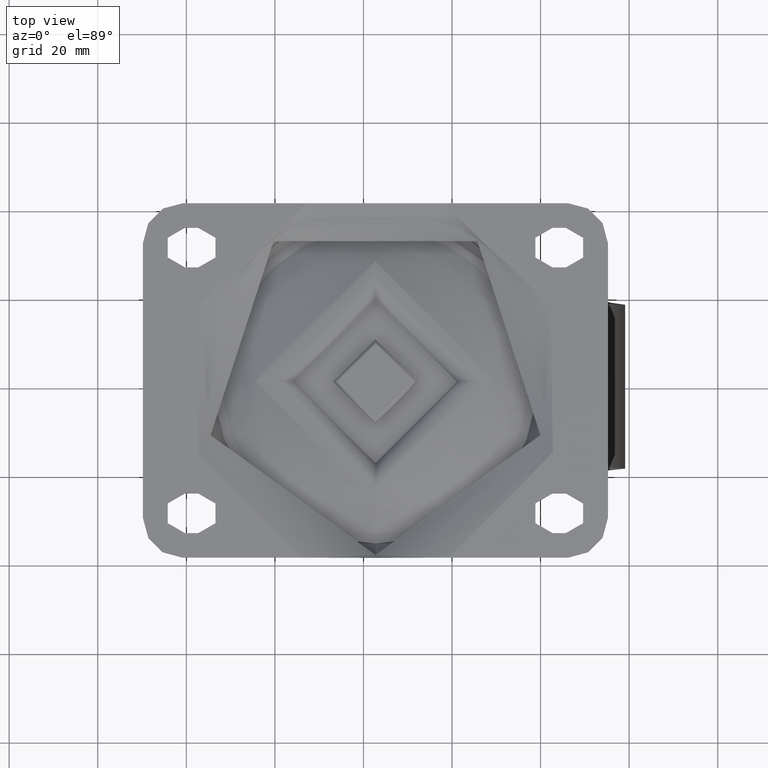
[diagram: clean part render]
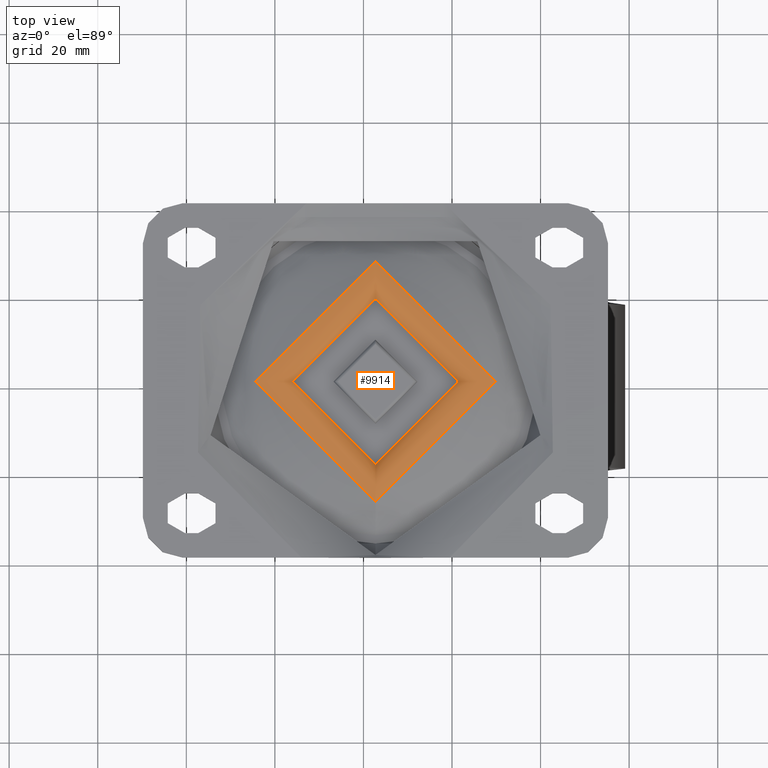
[diagram: same view with one face highlighted and labeled with its STEP entity id]
A machine part, top view. The second image highlights one B-rep face of the part: STEP entity #9914.
In plain terms, the highlighted toroidal blend (fillet) surface has major radius 24.35 mm and minor (blend) radius 6.8606 mm.
Its self-contained STEP definition (entity closure, byte-faithful):
#2574=FACE_OUTER_BOUND('',#3186,.T.);
#3186=EDGE_LOOP('',(#6895,#6896,#6897,#6898));
#3906=CIRCLE('',#10736,27.0902471570553);
#3909=CIRCLE('',#10740,18.6999999999999);
#3910=CIRCLE('',#10741,6.86060000000001);
#4396=VERTEX_POINT('',#14523);
#4398=VERTEX_POINT('',#14529);
#5372=EDGE_CURVE('',#4396,#4396,#3906,.T.);
#5375=EDGE_CURVE('',#4398,#4398,#3909,.T.);
#5376=EDGE_CURVE('',#4398,#4396,#3910,.T.);
#6895=ORIENTED_EDGE('',*,*,#5375,.F.);
#6896=ORIENTED_EDGE('',*,*,#5376,.T.);
#6897=ORIENTED_EDGE('',*,*,#5372,.T.);
#6898=ORIENTED_EDGE('',*,*,#5376,.F.);
#9891=TOROIDAL_SURFACE('',#10739,24.35,6.86060000000001);
#9914=ADVANCED_FACE('',(#2574),#9891,.T.);
#10736=AXIS2_PLACEMENT_3D('',#14524,#11833,#11834);
#10739=AXIS2_PLACEMENT_3D('',#14528,#11839,#11840);
#10740=AXIS2_PLACEMENT_3D('',#14530,#11841,#11842);
#10741=AXIS2_PLACEMENT_3D('',#14531,#11843,#11844);
#11833=DIRECTION('center_axis',(0.,0.,1.));
#11834=DIRECTION('ref_axis',(1.,0.,0.));
#11839=DIRECTION('center_axis',(0.,0.,1.));
#11840=DIRECTION('ref_axis',(1.,0.,0.));
#11841=DIRECTION('center_axis',(0.,0.,1.));
#11842=DIRECTION('ref_axis',(1.,0.,0.));
#11843=DIRECTION('center_axis',(0.,-1.,0.));
#11844=DIRECTION('ref_axis',(-1.,0.,0.));
#14523=CARTESIAN_POINT('',(541.650577837544,-462.775587103942,-1.01041512671561));
#14524=CARTESIAN_POINT('Origin',(568.740824994599,-462.775587103942,-1.01041512671561));
#14528=CARTESIAN_POINT('Origin',(568.740824994599,-462.775587103942,-7.30000000000007));
#14529=CARTESIAN_POINT('',(550.040824994599,-462.775587103942,-3.40829955417962));
#14530=CARTESIAN_POINT('Origin',(568.740824994599,-462.775587103942,-3.40829955417962));
#14531=CARTESIAN_POINT('Origin',(544.390824994599,-462.775587103942,-7.30000000000007));